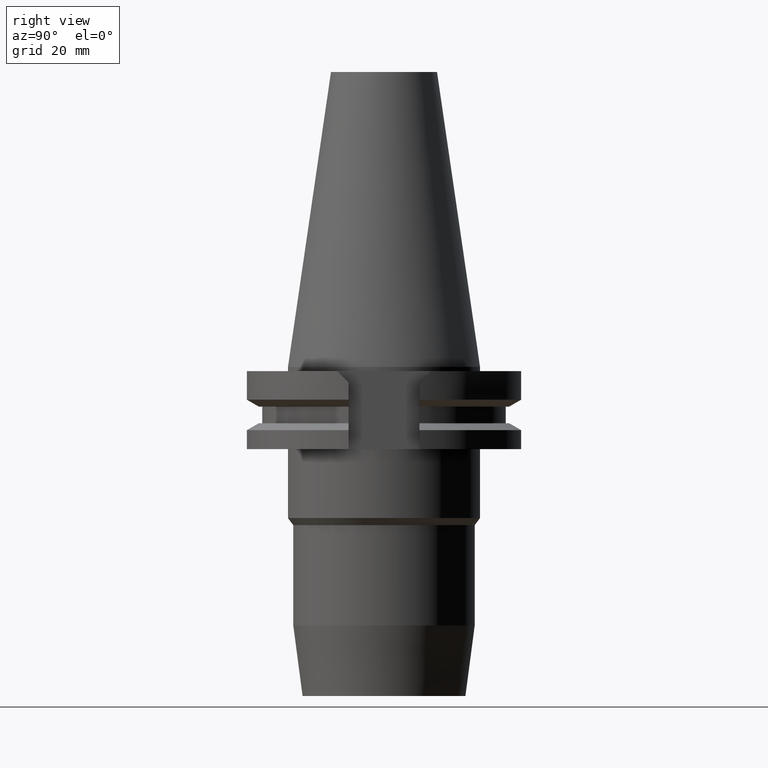
[diagram: clean part render]
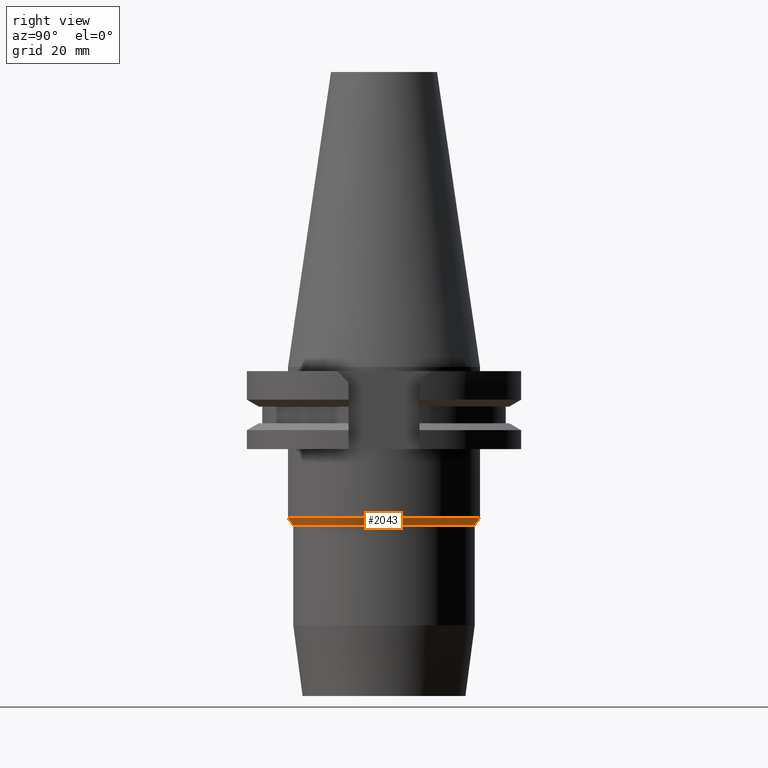
[diagram: same view with one face highlighted and labeled with its STEP entity id]
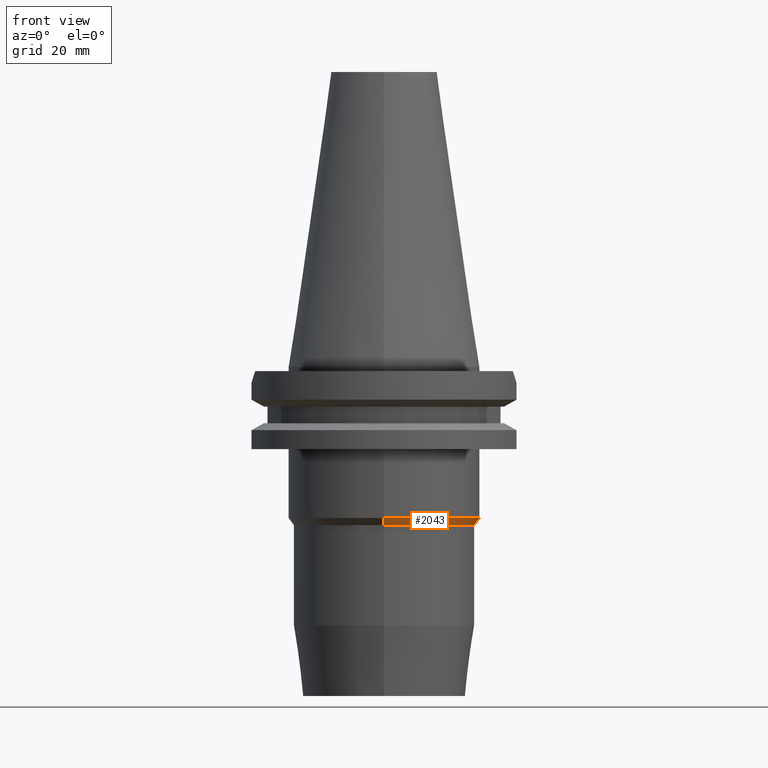
[diagram: same view with one face highlighted and labeled with its STEP entity id]
A machine part, right view. The second image highlights one B-rep face of the part: STEP entity #2043.
A second angle (front view) of the same face is appended — the face is thin or edge-on in the first view.
In plain terms, the highlighted conical surface has half-angle 36.771 deg.
Its self-contained STEP definition (entity closure, byte-faithful):
#830=DIRECTION('',(0.E0,-5.986182352368E-1,-8.010344614572E-1));
#831=VECTOR('',#830,2.046379358147E0);
#832=CARTESIAN_POINT('',(0.E0,2.2225E1,-3.5E1));
#833=LINE('',#832,#831);
#837=CARTESIAN_POINT('',(0.E0,0.E0,-3.663922038709E1));
#838=DIRECTION('',(0.E0,0.E0,-1.E0));
#839=DIRECTION('',(0.E0,1.E0,0.E0));
#840=AXIS2_PLACEMENT_3D('',#837,#838,#839);
#845=CARTESIAN_POINT('',(0.E0,0.E0,-3.5E1));
#846=DIRECTION('',(0.E0,0.E0,1.E0));
#847=DIRECTION('',(0.E0,-1.E0,0.E0));
#848=AXIS2_PLACEMENT_3D('',#845,#846,#847);
#861=DIRECTION('',(0.E0,5.986182352368E-1,-8.010344614572E-1));
#862=VECTOR('',#861,2.046379358147E0);
#863=CARTESIAN_POINT('',(0.E0,-2.2225E1,-3.5E1));
#864=LINE('',#863,#862);
#1272=CARTESIAN_POINT('',(0.E0,2.2225E1,-3.5E1));
#1273=VERTEX_POINT('',#1272);
#1274=CARTESIAN_POINT('',(0.E0,-2.2225E1,-3.5E1));
#1275=VERTEX_POINT('',#1274);
#1276=CARTESIAN_POINT('',(0.E0,2.1E1,-3.663922038709E1));
#1277=VERTEX_POINT('',#1276);
#1278=CARTESIAN_POINT('',(0.E0,-2.1E1,-3.663922038709E1));
#1279=VERTEX_POINT('',#1278);
#2029=CARTESIAN_POINT('',(0.E0,0.E0,-3.581961019355E1));
#2030=DIRECTION('',(0.E0,0.E0,1.E0));
#2031=DIRECTION('',(0.E0,1.E0,0.E0));
#2032=AXIS2_PLACEMENT_3D('',#2029,#2030,#2031);
#2033=CONICAL_SURFACE('',#2032,2.16125E1,3.6771E1);
#2035=ORIENTED_EDGE('',*,*,#2034,.T.);
#2037=ORIENTED_EDGE('',*,*,#2036,.T.);
#2039=ORIENTED_EDGE('',*,*,#2038,.F.);
#2040=ORIENTED_EDGE('',*,*,#2022,.T.);
#2041=EDGE_LOOP('',(#2035,#2037,#2039,#2040));
#2042=FACE_OUTER_BOUND('',#2041,.F.);
#841=CIRCLE('',#840,2.1E1);
#849=CIRCLE('',#848,2.2225E1);
#2022=EDGE_CURVE('',#1275,#1273,#849,.T.);
#2034=EDGE_CURVE('',#1273,#1277,#833,.T.);
#2036=EDGE_CURVE('',#1277,#1279,#841,.T.);
#2038=EDGE_CURVE('',#1275,#1279,#864,.T.);
#2043=ADVANCED_FACE('',(#2042),#2033,.T.);